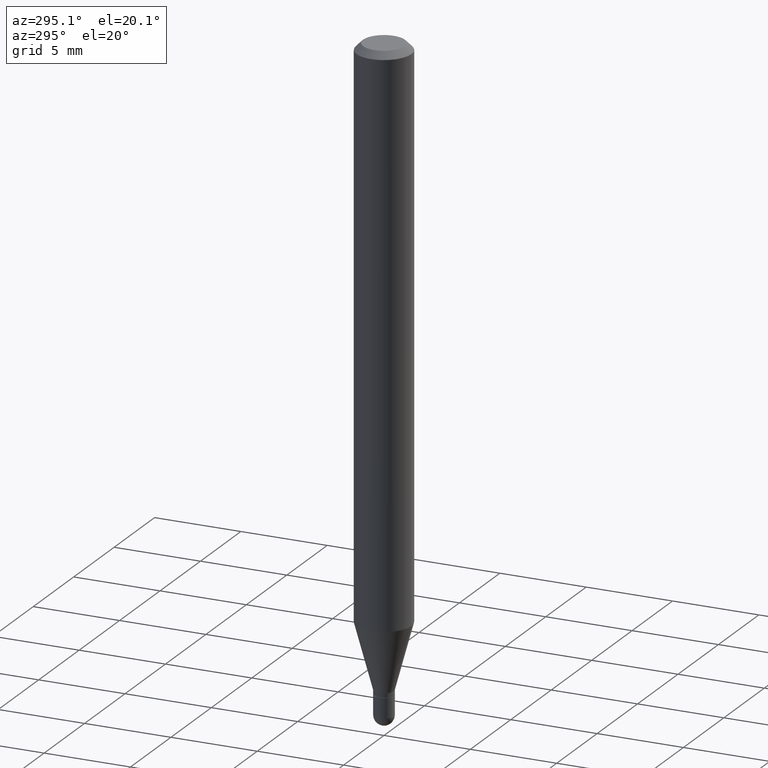
[diagram: clean part render]
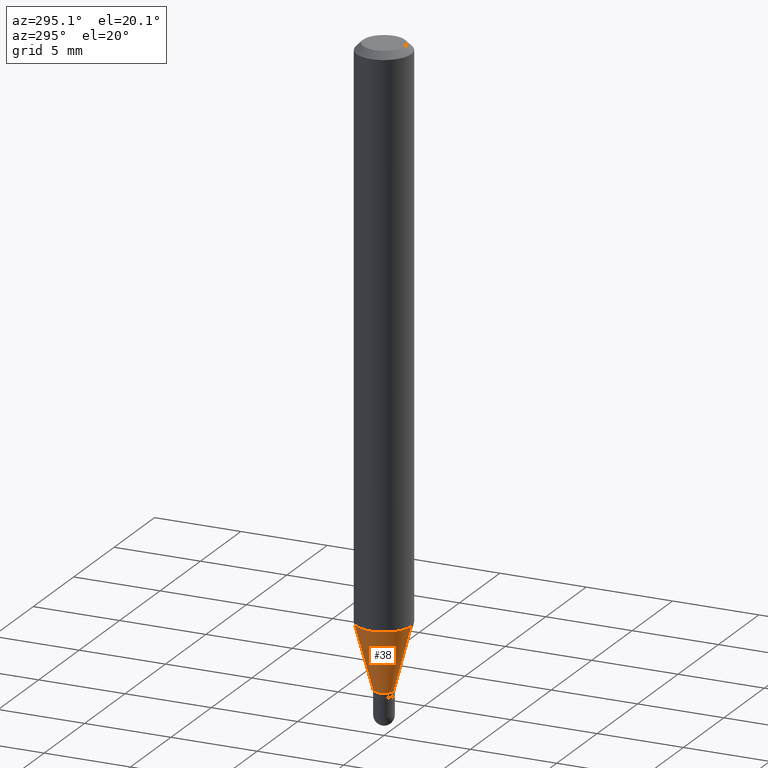
[diagram: same view with one face highlighted and labeled with its STEP entity id]
A machine part, auxiliary view. The second image highlights one B-rep face of the part: STEP entity #38.
In plain terms, the highlighted conical surface has half-angle 15 deg.
Its self-contained STEP definition (entity closure, byte-faithful):
#28 = CIRCLE ( 'NONE', #314, 0.02249999999999992284 ) ;
#32 = CARTESIAN_POINT ( 'NONE',  ( 3.477434853984498792E-29, -4.964917666079289366E-15, -1.421999999999999931 ) ) ;
#34 = DIRECTION ( 'NONE',  ( -6.982962677686265133E-15, -1.000000000000000000, 0.000000000000000000 ) ) ;
#35 = VERTEX_POINT ( 'NONE', #381 ) ;
#38 = ADVANCED_FACE ( 'NONE', ( #187 ), #346, .T. ) ;
#53 = AXIS2_PLACEMENT_3D ( 'NONE', #32, #193, #34 ) ;
#78 = CIRCLE ( 'NONE', #428, 0.06250000000000000000 ) ;
#81 = DIRECTION ( 'NONE',  ( -6.982962677686265922E-15, -1.000000000000000000, 4.370956789862821150E-15 ) ) ;
#86 = LINE ( 'NONE', #321, #184 ) ;
#141 = CARTESIAN_POINT ( 'NONE',  ( -4.364351673553605587E-16, -0.06250000000000446865, -1.272717967697244879 ) ) ;
#153 = CARTESIAN_POINT ( 'NONE',  ( -1.571166602479056403E-16, -0.02250000000000488762, -1.421999999999999931 ) ) ;
#155 = EDGE_CURVE ( 'NONE', #207, #35, #28, .T. ) ;
#158 = CARTESIAN_POINT ( 'NONE',  ( 3.477434853984498792E-29, -4.964917666079289366E-15, -1.421999999999999931 ) ) ;
#183 = ORIENTED_EDGE ( 'NONE', *, *, #466, .T. ) ;
#184 = VECTOR ( 'NONE', #474, 39.37007874015748143 ) ;
#186 = CARTESIAN_POINT ( 'NONE',  ( 3.112372588018788415E-29, -4.443698960447666136E-15, -1.272717967697245101 ) ) ;
#187 = FACE_OUTER_BOUND ( 'NONE', #324, .T. ) ;
#193 = DIRECTION ( 'NONE',  ( -2.445453483814696650E-29, 3.491503281349710871E-15, 1.000000000000000000 ) ) ;
#207 = VERTEX_POINT ( 'NONE', #392 ) ;
#211 = EDGE_CURVE ( 'NONE', #207, #272, #86, .T. ) ;
#217 = DIRECTION ( 'NONE',  ( -6.982962677686265133E-15, -1.000000000000000000, 0.000000000000000000 ) ) ;
#253 = LINE ( 'NONE', #153, #277 ) ;
#258 = ORIENTED_EDGE ( 'NONE', *, *, #496, .F. ) ;
#272 = VERTEX_POINT ( 'NONE', #431 ) ;
#277 = VECTOR ( 'NONE', #449, 39.37007874015749564 ) ;
#304 = VERTEX_POINT ( 'NONE', #141 ) ;
#314 = AXIS2_PLACEMENT_3D ( 'NONE', #158, #423, #217 ) ;
#321 = CARTESIAN_POINT ( 'NONE',  ( 1.598721155460567527E-16, 0.02249999999999495806, -1.421999999999999931 ) ) ;
#324 = EDGE_LOOP ( 'NONE', ( #348, #470, #183, #258 ) ) ;
#346 = CONICAL_SURFACE ( 'NONE', #53, 0.02249999999999992284, 0.2617993877991501850 ) ;
#348 = ORIENTED_EDGE ( 'NONE', *, *, #211, .F. ) ;
#381 = CARTESIAN_POINT ( 'NONE',  ( -1.571166602479056403E-16, -0.02250000000000488762, -1.421999999999999931 ) ) ;
#392 = CARTESIAN_POINT ( 'NONE',  ( 3.019806626980753384E-16, 0.02249999999999496153, -1.421999999999999931 ) ) ;
#423 = DIRECTION ( 'NONE',  ( -2.445453483814696650E-29, 3.491503281349710871E-15, 1.000000000000000000 ) ) ;
#426 = DIRECTION ( 'NONE',  ( -2.445453483814696650E-29, 3.491503281349710871E-15, 1.000000000000000000 ) ) ;
#428 = AXIS2_PLACEMENT_3D ( 'NONE', #186, #426, #81 ) ;
#431 = CARTESIAN_POINT ( 'NONE',  ( 4.440892098500934804E-16, 0.06249999999999552441, -1.272717967697245323 ) ) ;
#449 = DIRECTION ( 'NONE',  ( -1.807323732225329350E-15, -0.2588190451025180194, 0.9659258262890689783 ) ) ;
#466 = EDGE_CURVE ( 'NONE', #35, #304, #253, .T. ) ;
#470 = ORIENTED_EDGE ( 'NONE', *, *, #155, .T. ) ;
#474 = DIRECTION ( 'NONE',  ( 1.839019923739599526E-15, 0.2588190451025248473, 0.9659258262890670910 ) ) ;
#496 = EDGE_CURVE ( 'NONE', #272, #304, #78, .T. ) ;